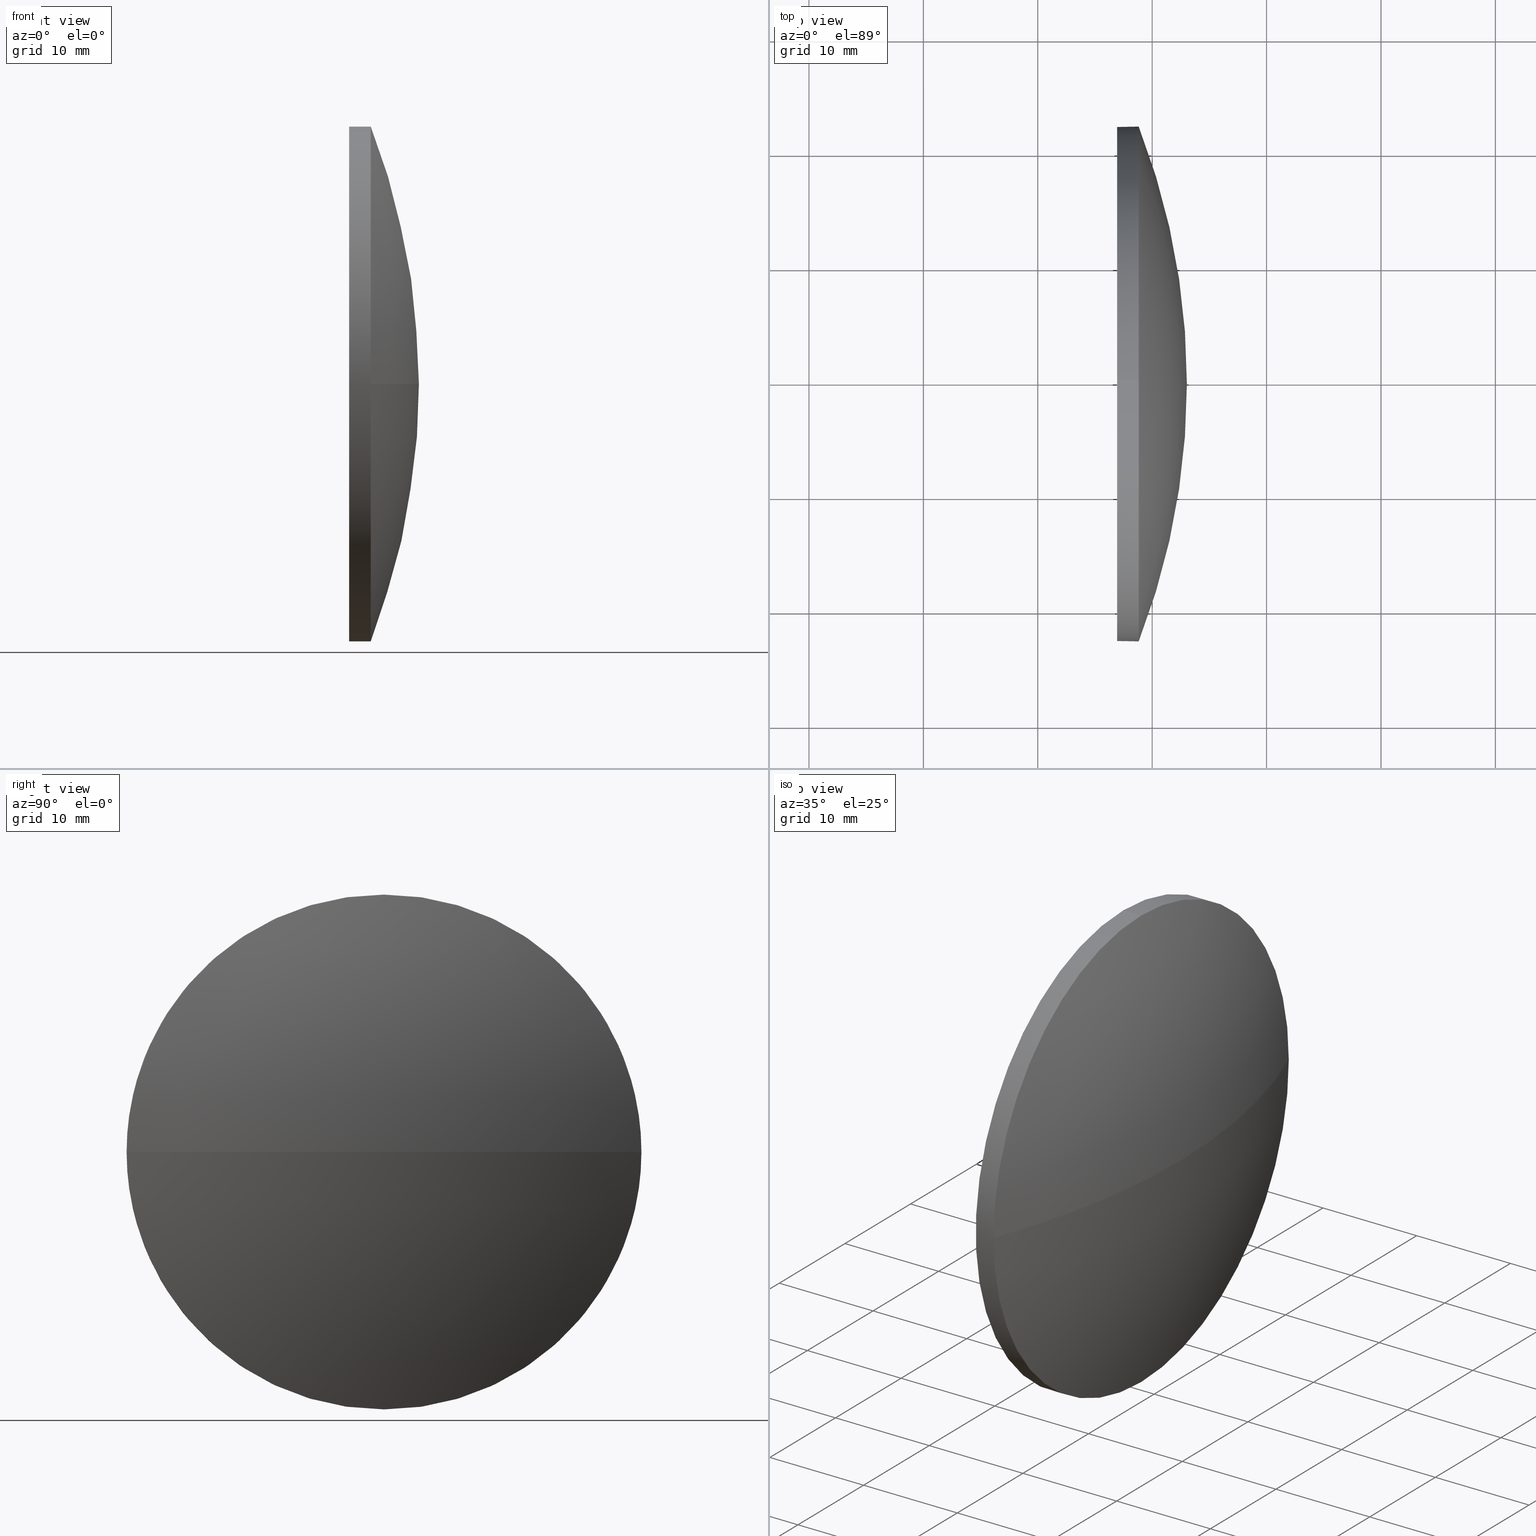
[diagram: canonical four-view strip — front | top / right | iso, engineering-drawing reading convention]
A machine part, canonical four-view strip (front | top / right | iso — engineering-drawing reading convention). The complete STEP part file that produces these views, byte-faithful:
ISO-10303-21;
HEADER;
FILE_DESCRIPTION (( 'STEP AP214' ),
    '1' );
FILE_NAME ('100237.STEP',
    '2019-05-28T06:28:40',
    ( '' ),
    ( '' ),
    'SwSTEP 2.0',
    'SolidWorks 2016',
    '' );
FILE_SCHEMA (( 'AUTOMOTIVE_DESIGN' ));
ENDSEC;

DATA;
#1 = DIRECTION ( 'NONE',  ( -1.000000000000000000, -0.0000000000000000000, -0.0000000000000000000 ) ) ;
#2 = DIRECTION ( 'NONE',  ( 0.0000000000000000000, 0.0000000000000000000, 1.000000000000000000 ) ) ;
#3 = DIRECTION ( 'NONE',  ( -0.0000000000000000000, 0.0000000000000000000, -1.000000000000000000 ) ) ;
#4 = EDGE_CURVE ( 'NONE', #92, #18, #85, .T. ) ;
#5 = FILL_AREA_STYLE_COLOUR ( '', #77 ) ;
#6 = CARTESIAN_POINT ( 'NONE',  ( 388.8254468989661100, -20.30678025366819400, 0.0000000000000000000 ) ) ;
#7 = CIRCLE ( 'NONE', #161, 22.50000000000000000 ) ;
#8 = EDGE_CURVE ( 'NONE', #86, #107, #7, .T. ) ;
#9 = SURFACE_SIDE_STYLE ('',( #99 ) ) ;
#10 = EDGE_CURVE ( 'NONE', #92, #86, #149, .T. ) ;
#11 = ORIENTED_EDGE ( 'NONE', *, *, #13, .F. ) ;
#12 = EDGE_LOOP ( 'NONE', ( #151, #103, #59, #25, #159 ) ) ;
#13 = EDGE_CURVE ( 'NONE', #107, #18, #115, .T. ) ;
#14 = PRESENTATION_STYLE_ASSIGNMENT (( #158 ) ) ;
#15 = ORIENTED_EDGE ( 'NONE', *, *, #78, .T. ) ;
#16 = DIRECTION ( 'NONE',  ( 1.000000000000000000, 0.0000000000000000000, 0.0000000000000000000 ) ) ;
#17 = CIRCLE ( 'NONE', #84, 22.50000000000000000 ) ;
#18 = VERTEX_POINT ( 'NONE', #63 ) ;
#19 = EDGE_CURVE ( 'NONE', #18, #79, #118, .T. ) ;
#20 = CARTESIAN_POINT ( 'NONE',  ( 330.8057438110801100, -20.30678025366819700, 0.0000000000000000000 ) ) ;
#21 =( LENGTH_UNIT ( ) NAMED_UNIT ( * ) SI_UNIT ( .MILLI., .METRE. ) );
#22 = CARTESIAN_POINT ( 'NONE',  ( 393.0354468989660900, -20.30678025366819400, 0.0000000000000000000 ) ) ;
#23 = DIRECTION ( 'NONE',  ( -1.000000000000000000, -0.0000000000000000000, -0.0000000000000000000 ) ) ;
#24 = PRODUCT_DEFINITION ( 'δ֪', '', #40, #116 ) ;
#25 = ORIENTED_EDGE ( 'NONE', *, *, #167, .T. ) ;
#26 = APPLICATION_PROTOCOL_DEFINITION ( 'draft international standard', 'automotive_design', 1998, #42 ) ;
#27 = AXIS2_PLACEMENT_3D ( 'NONE', #6, #80, #177 ) ;
#28 = EDGE_LOOP ( 'NONE', ( #71, #186, #11, #128 ) ) ;
#29 = PRESENTATION_LAYER_ASSIGNMENT (  '', '', ( #100 ) ) ;
#30 = DIRECTION ( 'NONE',  ( 0.0000000000000000000, 0.0000000000000000000, 1.000000000000000000 ) ) ;
#31 = CARTESIAN_POINT ( 'NONE',  ( 388.8254468989661100, -20.30678025366819400, 0.0000000000000000000 ) ) ;
#32 = CIRCLE ( 'NONE', #27, 22.50000000000000000 ) ;
#33 = SURFACE_STYLE_FILL_AREA ( #35 ) ;
#34 = ADVANCED_FACE ( 'NONE', ( #52 ), #73, .T. ) ;
#35 = FILL_AREA_STYLE ('',( #5 ) ) ;
#36 = CARTESIAN_POINT ( 'NONE',  ( 386.9354468989661200, -20.30678025366819400, 22.50000000000000000 ) ) ;
#37 = ORIENTED_EDGE ( 'NONE', *, *, #78, .F. ) ;
#38 =( GEOMETRIC_REPRESENTATION_CONTEXT ( 3 ) GLOBAL_UNCERTAINTY_ASSIGNED_CONTEXT ( ( #122 ) ) GLOBAL_UNIT_ASSIGNED_CONTEXT ( ( #124, #81, #146 ) ) REPRESENTATION_CONTEXT ( 'NONE', 'WORKASPACE' ) );
#39 = DIRECTION ( 'NONE',  ( 0.0000000000000000000, 0.0000000000000000000, 1.000000000000000000 ) ) ;
#40 = PRODUCT_DEFINITION_FORMATION_WITH_SPECIFIED_SOURCE ( '�κ�', '', #55, .NOT_KNOWN. ) ;
#41 = DIRECTION ( 'NONE',  ( -1.000000000000000000, -0.0000000000000000000, -0.0000000000000000000 ) ) ;
#42 = APPLICATION_CONTEXT ( 'automotive_design' ) ;
#43 = APPLICATION_PROTOCOL_DEFINITION ( 'draft international standard', 'automotive_design', 1998, #130 ) ;
#44 = STYLED_ITEM ( 'NONE', ( #120 ), #101 ) ;
#45 = ORIENTED_EDGE ( 'NONE', *, *, #69, .T. ) ;
#46 = VERTEX_POINT ( 'NONE', #111 ) ;
#47 = CLOSED_SHELL ( 'NONE', ( #34, #164, #90, #126, #70 ) ) ;
#48 = AXIS2_PLACEMENT_3D ( 'NONE', #76, #108, #16 ) ;
#49 = DIRECTION ( 'NONE',  ( 0.0000000000000000000, 0.0000000000000000000, 1.000000000000000000 ) ) ;
#50 = AXIS2_PLACEMENT_3D ( 'NONE', #57, #142, #132 ) ;
#51 = DIRECTION ( 'NONE',  ( -1.000000000000000000, -0.0000000000000000000, -0.0000000000000000000 ) ) ;
#52 = FACE_OUTER_BOUND ( 'NONE', #64, .T. ) ;
#53 = AXIS2_PLACEMENT_3D ( 'NONE', #104, #172, #89 ) ;
#54 = DIRECTION ( 'NONE',  ( -1.000000000000000000, -0.0000000000000000000, -0.0000000000000000000 ) ) ;
#55 = PRODUCT ( '100237', '100237', '', ( #150 ) ) ;
#56 = FILL_AREA_STYLE_COLOUR ( '', #153 ) ;
#57 = CARTESIAN_POINT ( 'NONE',  ( 0.0000000000000000000, 0.0000000000000000000, 0.0000000000000000000 ) ) ;
#58 =( NAMED_UNIT ( * ) PLANE_ANGLE_UNIT ( ) SI_UNIT ( $, .RADIAN. ) );
#59 = ORIENTED_EDGE ( 'NONE', *, *, #19, .T. ) ;
#60 = CARTESIAN_POINT ( 'NONE',  ( 388.8254468989661100, -20.30678025366819400, 22.50000000000000000 ) ) ;
#61 = AXIS2_PLACEMENT_3D ( 'NONE', #176, #148, #139 ) ;
#62 = AXIS2_PLACEMENT_3D ( 'NONE', #141, #54, #66 ) ;
#63 = CARTESIAN_POINT ( 'NONE',  ( 388.8254468989661100, -42.80678025366819400, -2.755455298081544800E-015 ) ) ;
#64 = EDGE_LOOP ( 'NONE', ( #169, #112, #121, #165, #15 ) ) ;
#65 = CARTESIAN_POINT ( 'NONE',  ( 330.8057438110801100, -20.30678025366819700, 0.0000000000000000000 ) ) ;
#66 = DIRECTION ( 'NONE',  ( 0.0000000000000000000, 0.0000000000000000000, 1.000000000000000000 ) ) ;
#67 = MANIFOLD_SOLID_BREP ( '��ת1', #47 ) ;
#68 = SURFACE_SIDE_STYLE ('',( #33 ) ) ;
#69 = EDGE_CURVE ( 'NONE', #46, #147, #17, .T. ) ;
#70 = ADVANCED_FACE ( 'NONE', ( #171 ), #125, .F. ) ;
#71 = ORIENTED_EDGE ( 'NONE', *, *, #10, .F. ) ;
#72 = PRESENTATION_LAYER_ASSIGNMENT (  '', '', ( #44 ) ) ;
#73 = CYLINDRICAL_SURFACE ( 'NONE', #152, 22.50000000000000000 ) ;
#74 = ORIENTED_EDGE ( 'NONE', *, *, #87, .T. ) ;
#75 = AXIS2_PLACEMENT_3D ( 'NONE', #160, #109, #95 ) ;
#76 = CARTESIAN_POINT ( 'NONE',  ( 330.8057438110801100, -20.30678025366819700, 0.0000000000000000000 ) ) ;
#77 = COLOUR_RGB ( '',1.000000000000000000, 1.000000000000000000, 1.000000000000000000 ) ;
#78 = EDGE_CURVE ( 'NONE', #79, #86, #32, .T. ) ;
#79 = VERTEX_POINT ( 'NONE', #60 ) ;
#80 = DIRECTION ( 'NONE',  ( -1.000000000000000000, -0.0000000000000000000, -0.0000000000000000000 ) ) ;
#81 =( NAMED_UNIT ( * ) PLANE_ANGLE_UNIT ( ) SI_UNIT ( $, .RADIAN. ) );
#82 = FACE_OUTER_BOUND ( 'NONE', #12, .T. ) ;
#83 = EDGE_LOOP ( 'NONE', ( #74, #45 ) ) ;
#84 = AXIS2_PLACEMENT_3D ( 'NONE', #97, #41, #39 ) ;
#85 = CIRCLE ( 'NONE', #53, 62.22970308788594500 ) ;
#86 = VERTEX_POINT ( 'NONE', #178 ) ;
#87 = EDGE_CURVE ( 'NONE', #147, #46, #106, .T. ) ;
#88 = EDGE_LOOP ( 'NONE', ( #154, #174, #37, #114 ) ) ;
#89 = DIRECTION ( 'NONE',  ( 0.0000000000000000000, 1.000000000000000000, 1.224646799147353500E-016 ) ) ;
#90 = ADVANCED_FACE ( 'NONE', ( #143 ), #155, .T. ) ;
#91 = SPHERICAL_SURFACE ( 'NONE', #175, 62.22970308788595200 ) ;
#92 = VERTEX_POINT ( 'NONE', #22 ) ;
#93 = CARTESIAN_POINT ( 'NONE',  ( 382.8923254294812800, -20.30678025366819400, 22.50000000000000000 ) ) ;
#94 = DIRECTION ( 'NONE',  ( 0.0000000000000000000, 1.000000000000000000, 0.0000000000000000000 ) ) ;
#95 = DIRECTION ( 'NONE',  ( 0.0000000000000000000, 0.0000000000000000000, -1.000000000000000000 ) ) ;
#96 = MECHANICAL_DESIGN_GEOMETRIC_PRESENTATION_REPRESENTATION (  '', ( #44 ), #182 ) ;
#97 = CARTESIAN_POINT ( 'NONE',  ( 386.9354468989661200, -20.30678025366819400, 0.0000000000000000000 ) ) ;
#98 = PRODUCT_RELATED_PRODUCT_CATEGORY ( 'part', '', ( #55 ) ) ;
#99 = SURFACE_STYLE_FILL_AREA ( #170 ) ;
#100 = STYLED_ITEM ( 'NONE', ( #14 ), #67 ) ;
#101 = ADVANCED_BREP_SHAPE_REPRESENTATION ( '100237', ( #67, #50 ), #137 ) ;
#102 = EDGE_CURVE ( 'NONE', #107, #46, #181, .T. ) ;
#103 = ORIENTED_EDGE ( 'NONE', *, *, #13, .T. ) ;
#104 = CARTESIAN_POINT ( 'NONE',  ( 330.8057438110801100, -20.30678025366819700, 0.0000000000000000000 ) ) ;
#105 = CARTESIAN_POINT ( 'NONE',  ( 388.8254468989661100, -20.30678025366819400, 0.0000000000000000000 ) ) ;
#106 = CIRCLE ( 'NONE', #62, 22.50000000000000000 ) ;
#107 = VERTEX_POINT ( 'NONE', #163 ) ;
#108 = DIRECTION ( 'NONE',  ( -0.0000000000000000000, 0.0000000000000000000, 1.000000000000000000 ) ) ;
#109 = DIRECTION ( 'NONE',  ( 1.000000000000000000, 0.0000000000000000000, 0.0000000000000000000 ) ) ;
#110 = DIRECTION ( 'NONE',  ( -1.000000000000000000, -0.0000000000000000000, -0.0000000000000000000 ) ) ;
#111 = CARTESIAN_POINT ( 'NONE',  ( 386.9354468989661200, -20.30678025366819000, -22.50000000000000000 ) ) ;
#112 = ORIENTED_EDGE ( 'NONE', *, *, #102, .T. ) ;
#113 = SURFACE_STYLE_USAGE ( .BOTH. , #9 ) ;
#114 = ORIENTED_EDGE ( 'NONE', *, *, #19, .F. ) ;
#115 = CIRCLE ( 'NONE', #144, 22.50000000000000000 ) ;
#116 = PRODUCT_DEFINITION_CONTEXT ( 'detailed design', #130, 'design' ) ;
#117 = MECHANICAL_DESIGN_GEOMETRIC_PRESENTATION_REPRESENTATION (  '', ( #100 ), #38 ) ;
#118 = CIRCLE ( 'NONE', #184, 22.50000000000000000 ) ;
#119 = CARTESIAN_POINT ( 'NONE',  ( 388.8254468989661100, -20.30678025366819400, 0.0000000000000000000 ) ) ;
#120 = PRESENTATION_STYLE_ASSIGNMENT (( #113 ) ) ;
#121 = ORIENTED_EDGE ( 'NONE', *, *, #87, .F. ) ;
#122 = UNCERTAINTY_MEASURE_WITH_UNIT (LENGTH_MEASURE( 1.000000000000000100E-005 ), #124, 'distance_accuracy_value', 'NONE');
#123 = PRODUCT_DEFINITION_SHAPE ( 'NONE', 'NONE',  #24 ) ;
#124 =( LENGTH_UNIT ( ) NAMED_UNIT ( * ) SI_UNIT ( .MILLI., .METRE. ) );
#125 = PLANE ( 'NONE',  #75 ) ;
#126 = ADVANCED_FACE ( 'NONE', ( #82 ), #183, .T. ) ;
#127 = DIRECTION ( 'NONE',  ( 0.0000000000000000000, 0.0000000000000000000, 1.000000000000000000 ) ) ;
#128 = ORIENTED_EDGE ( 'NONE', *, *, #8, .F. ) ;
#129 =( NAMED_UNIT ( * ) SI_UNIT ( $, .STERADIAN. ) SOLID_ANGLE_UNIT ( ) );
#130 = APPLICATION_CONTEXT ( 'automotive_design' ) ;
#131 = AXIS2_PLACEMENT_3D ( 'NONE', #65, #3, #140 ) ;
#132 = DIRECTION ( 'NONE',  ( 1.000000000000000000, 0.0000000000000000000, 0.0000000000000000000 ) ) ;
#133 = FACE_OUTER_BOUND ( 'NONE', #28, .T. ) ;
#134 = VECTOR ( 'NONE', #110, 1000.000000000000000 ) ;
#135 = UNCERTAINTY_MEASURE_WITH_UNIT (LENGTH_MEASURE( 1.000000000000000100E-005 ), #21, 'distance_accuracy_value', 'NONE');
#136 = LINE ( 'NONE', #93, #134 ) ;
#137 =( GEOMETRIC_REPRESENTATION_CONTEXT ( 3 ) GLOBAL_UNCERTAINTY_ASSIGNED_CONTEXT ( ( #135 ) ) GLOBAL_UNIT_ASSIGNED_CONTEXT ( ( #21, #58, #138 ) ) REPRESENTATION_CONTEXT ( 'NONE', 'WORKASPACE' ) );
#138 =( NAMED_UNIT ( * ) SI_UNIT ( $, .STERADIAN. ) SOLID_ANGLE_UNIT ( ) );
#139 = DIRECTION ( 'NONE',  ( 0.0000000000000000000, 0.0000000000000000000, 1.000000000000000000 ) ) ;
#140 = DIRECTION ( 'NONE',  ( 0.0000000000000000000, 1.000000000000000000, 0.0000000000000000000 ) ) ;
#141 = CARTESIAN_POINT ( 'NONE',  ( 386.9354468989661200, -20.30678025366819400, 0.0000000000000000000 ) ) ;
#142 = DIRECTION ( 'NONE',  ( 0.0000000000000000000, 0.0000000000000000000, 1.000000000000000000 ) ) ;
#143 = FACE_OUTER_BOUND ( 'NONE', #88, .T. ) ;
#144 = AXIS2_PLACEMENT_3D ( 'NONE', #119, #51, #30 ) ;
#145 = VECTOR ( 'NONE', #23, 1000.000000000000000 ) ;
#146 =( NAMED_UNIT ( * ) SI_UNIT ( $, .STERADIAN. ) SOLID_ANGLE_UNIT ( ) );
#147 = VERTEX_POINT ( 'NONE', #36 ) ;
#148 = DIRECTION ( 'NONE',  ( -1.000000000000000000, -0.0000000000000000000, -0.0000000000000000000 ) ) ;
#149 = CIRCLE ( 'NONE', #48, 62.22970308788594500 ) ;
#150 = PRODUCT_CONTEXT ( 'NONE', #42, 'mechanical' ) ;
#151 = ORIENTED_EDGE ( 'NONE', *, *, #102, .F. ) ;
#152 = AXIS2_PLACEMENT_3D ( 'NONE', #156, #157, #2 ) ;
#153 = COLOUR_RGB ( '',1.000000000000000000, 1.000000000000000000, 1.000000000000000000 ) ;
#154 = ORIENTED_EDGE ( 'NONE', *, *, #4, .F. ) ;
#155 = SPHERICAL_SURFACE ( 'NONE', #131, 62.22970308788595200 ) ;
#156 = CARTESIAN_POINT ( 'NONE',  ( 382.8923254294812800, -20.30678025366819400, 0.0000000000000000000 ) ) ;
#157 = DIRECTION ( 'NONE',  ( -1.000000000000000000, -0.0000000000000000000, -0.0000000000000000000 ) ) ;
#158 = SURFACE_STYLE_USAGE ( .BOTH. , #68 ) ;
#159 = ORIENTED_EDGE ( 'NONE', *, *, #69, .F. ) ;
#160 = CARTESIAN_POINT ( 'NONE',  ( 386.9354468989661200, -20.30678025366819400, 0.0000000000000000000 ) ) ;
#161 = AXIS2_PLACEMENT_3D ( 'NONE', #31, #1, #49 ) ;
#162 = DIRECTION ( 'NONE',  ( -0.0000000000000000000, 0.0000000000000000000, -1.000000000000000000 ) ) ;
#163 = CARTESIAN_POINT ( 'NONE',  ( 388.8254468989661100, -20.30678025366819000, -22.50000000000000000 ) ) ;
#164 = ADVANCED_FACE ( 'NONE', ( #133 ), #91, .T. ) ;
#165 = ORIENTED_EDGE ( 'NONE', *, *, #167, .F. ) ;
#166 =( NAMED_UNIT ( * ) PLANE_ANGLE_UNIT ( ) SI_UNIT ( $, .RADIAN. ) );
#167 = EDGE_CURVE ( 'NONE', #79, #147, #136, .T. ) ;
#168 = SHAPE_DEFINITION_REPRESENTATION ( #123, #101 ) ;
#169 = ORIENTED_EDGE ( 'NONE', *, *, #8, .T. ) ;
#170 = FILL_AREA_STYLE ('',( #56 ) ) ;
#171 = FACE_OUTER_BOUND ( 'NONE', #83, .T. ) ;
#172 = DIRECTION ( 'NONE',  ( 0.0000000000000000000, 1.224646799147353200E-016, -1.000000000000000000 ) ) ;
#173 = DIRECTION ( 'NONE',  ( -1.000000000000000000, -0.0000000000000000000, -0.0000000000000000000 ) ) ;
#174 = ORIENTED_EDGE ( 'NONE', *, *, #10, .T. ) ;
#175 = AXIS2_PLACEMENT_3D ( 'NONE', #20, #162, #94 ) ;
#176 = CARTESIAN_POINT ( 'NONE',  ( 382.8923254294812800, -20.30678025366819400, 0.0000000000000000000 ) ) ;
#177 = DIRECTION ( 'NONE',  ( 0.0000000000000000000, 0.0000000000000000000, 1.000000000000000000 ) ) ;
#178 = CARTESIAN_POINT ( 'NONE',  ( 388.8254468989661100, 2.193219746331801700, 0.0000000000000000000 ) ) ;
#179 = CARTESIAN_POINT ( 'NONE',  ( 382.8923254294812800, -20.30678025366819000, -22.50000000000000000 ) ) ;
#180 =( LENGTH_UNIT ( ) NAMED_UNIT ( * ) SI_UNIT ( .MILLI., .METRE. ) );
#181 = LINE ( 'NONE', #179, #145 ) ;
#182 =( GEOMETRIC_REPRESENTATION_CONTEXT ( 3 ) GLOBAL_UNCERTAINTY_ASSIGNED_CONTEXT ( ( #185 ) ) GLOBAL_UNIT_ASSIGNED_CONTEXT ( ( #180, #166, #129 ) ) REPRESENTATION_CONTEXT ( 'NONE', 'WORKASPACE' ) );
#183 = CYLINDRICAL_SURFACE ( 'NONE', #61, 22.50000000000000000 ) ;
#184 = AXIS2_PLACEMENT_3D ( 'NONE', #105, #173, #127 ) ;
#185 = UNCERTAINTY_MEASURE_WITH_UNIT (LENGTH_MEASURE( 1.000000000000000100E-005 ), #180, 'distance_accuracy_value', 'NONE');
#186 = ORIENTED_EDGE ( 'NONE', *, *, #4, .T. ) ;
ENDSEC;
END-ISO-10303-21;
